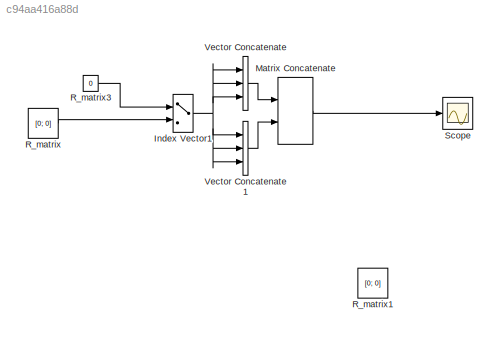
MODEL slx_c94aa416a88d
KIND model
BLOCK [MultiPortSwitch] Index Vector1
  DataPortOrder = Zero-based contiguous
  InputSameDT = off
  Inputs = 1
  Ports = [2, 1]
  SaturateOnIntegerOverflow = off
  zeroidx = on
BLOCK [Concatenate] Matrix Concatenate
  ConcatenateDimension = 2
  Mode = Multidimensional array
  Ports = [2, 1]
BLOCK [Constant] R_matrix
  SampleTime = cont.LoopPeriod
  Value = [0; 0]
BLOCK [Constant] R_matrix1
  SampleTime = cont.LoopPeriod
  Value = [0; 0]
BLOCK [Constant] R_matrix3
  SampleTime = cont.LoopPeriod
  Value = 0
BLOCK [Scope] Scope
  DataFormat = StructureWithTime
  Floating = off
  NumInputPorts = 1
  Ports = [1]
  SampleTime = 0
  ShowLegends = off
BLOCK [Concatenate] Vector Concatenate
  NumInputs = 3
  Ports = [3, 1]
BLOCK [Concatenate] Vector Concatenate1
  NumInputs = 3
  Ports = [3, 1]
NET Index Vector1:1 -> Vector Concatenate1:1, Vector Concatenate1:2, Vector Concatenate1:3, Vector Concatenate:1, Vector Concatenate:2, Vector Concatenate:3
LINE Matrix Concatenate:1 -> Scope:1
LINE R_matrix3:1 -> Index Vector1:1
LINE R_matrix:1 -> Index Vector1:2
LINE Vector Concatenate1:1 -> Matrix Concatenate:2
LINE Vector Concatenate:1 -> Matrix Concatenate:1
note: NET lines group one-source signal fan-out (src -> all destinations, sorted); 1:1 wires keep LINE
